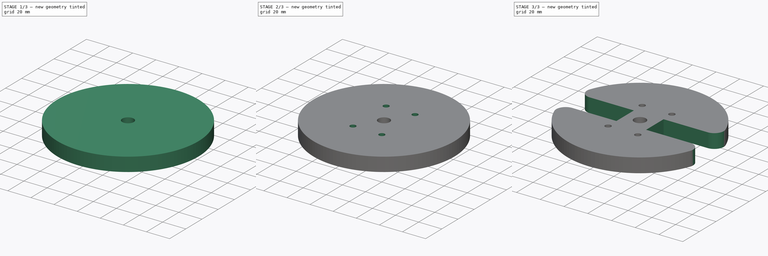
[diagram: build sequence overview — one tinted view per stage of 3, left to right]
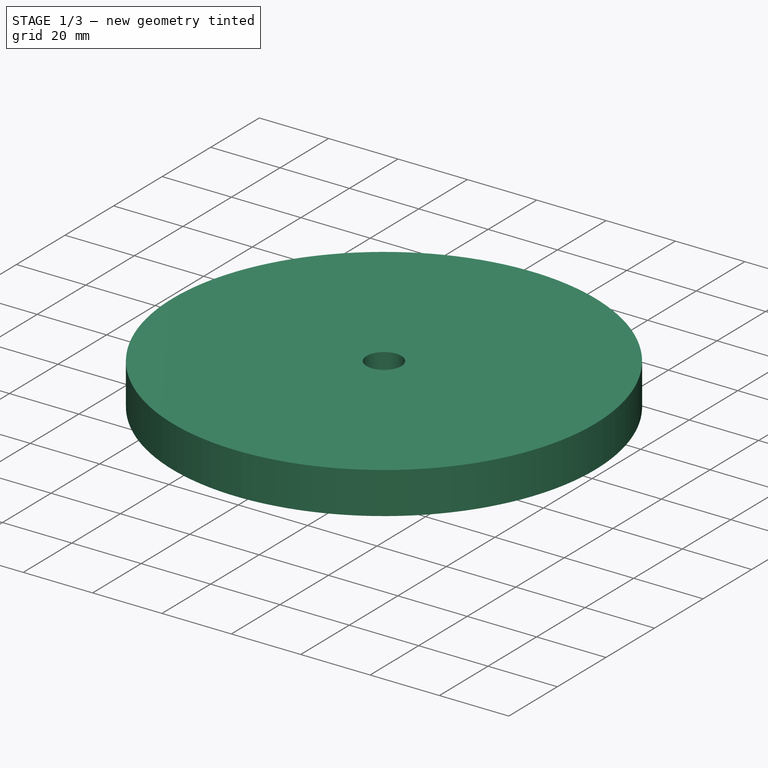
[diagram: stage 1 of 3 — iso view after this stage's code; geometry added in this stage tinted green]
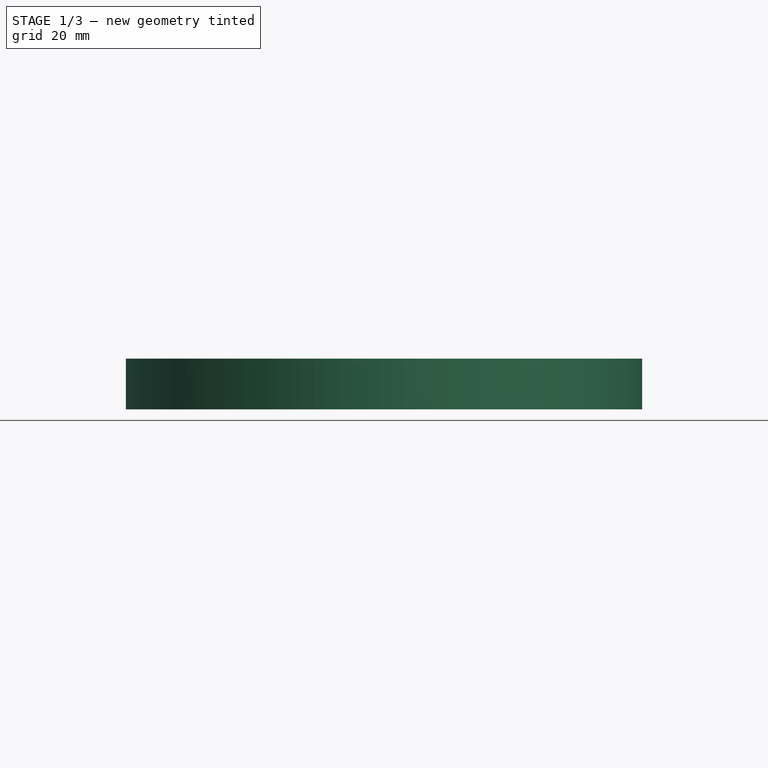
[diagram: stage 1 of 3 — front view after this stage's code; geometry added in this stage tinted green]
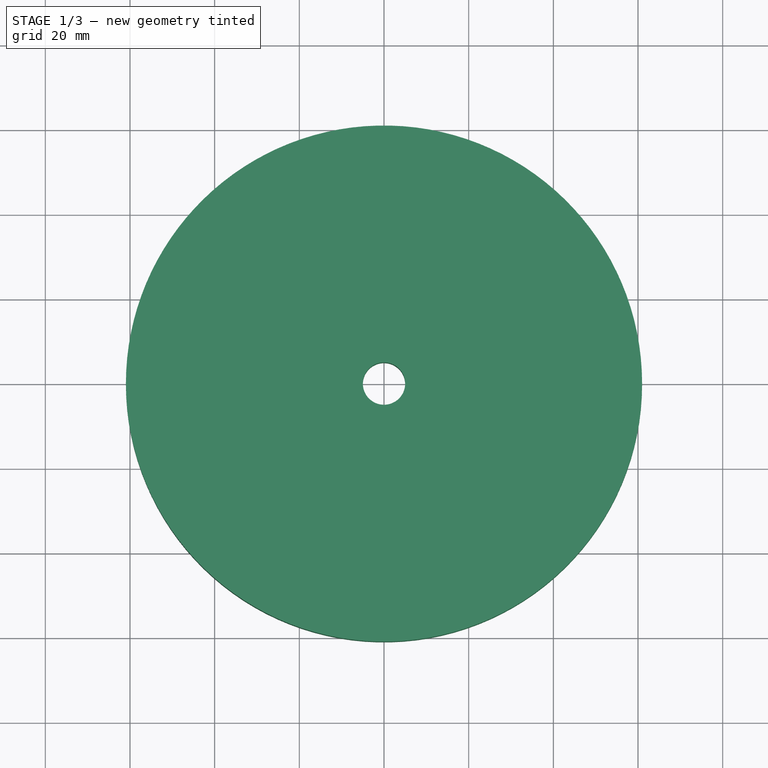
[diagram: stage 1 of 3 — top view after this stage's code; geometry added in this stage tinted green]
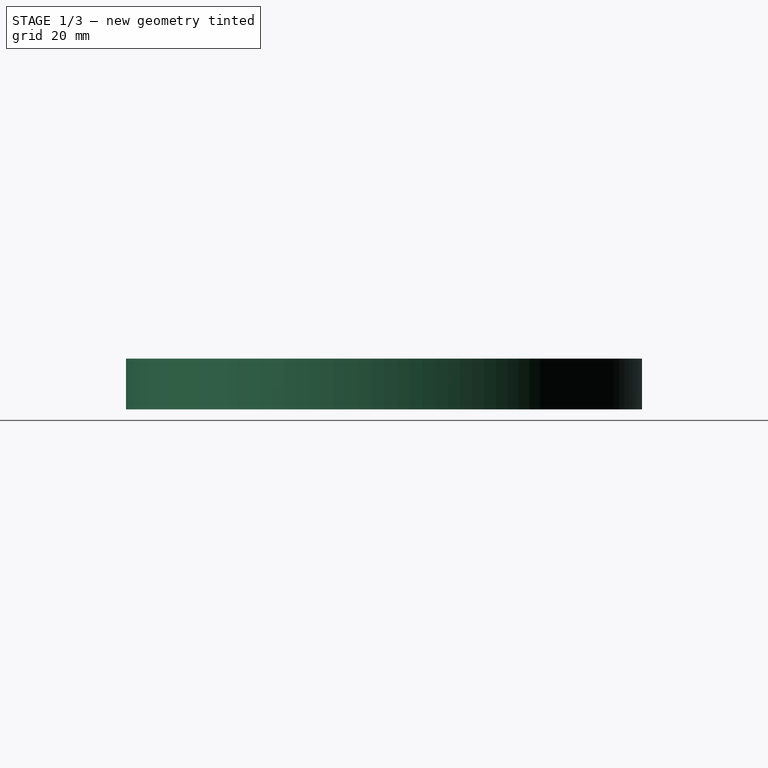
[diagram: stage 1 of 3 — right view after this stage's code; geometry added in this stage tinted green]
FCSTD DOCUMENT  (FreeCAD 1.0R39109 (Git))
Label: Stator_CoilWinder_Cheek
Comment: Back Cheek
License: All rights reserved
LicenseURL: http://en.wikipedia.org/wiki/All_rights_reserved
objects: Sketcher::SketchObject×4, PartDesign::Pocket×3, TechDraw::DrawViewDimension×3, PartDesign::Mirrored×2, PartDesign::Pad×1, Spreadsheet::Sheet×1, PartDesign::Body×1, TechDraw::DrawSVGTemplate×1, TechDraw::DrawProjGroupItem×1, TechDraw::DrawPage×1
note: 31 computed .brp shape members not serialized (recipe doc carries the construction recipe); baked Part::Feature solids carry a one-line shape summary decoded from their .brp
EXTERNAL_REF file=../../../Master_of_Puppets.FCStd obj=Alternator
EXTERNAL_REF file=../../../Master_of_Puppets.FCStd obj=Spreadsheet

FEATURE [Sketcher::SketchObject] Sketch
  ArcFitTolerance = 0
  AttachmentSupport = -> [XY_Plane001]
  FullyConstrained = true
  MakeInternals = false
  MapMode = 5
  expr: Constraints[1] = Spreadsheet.CoilWinderDiskRadius
  sketch-geometry (1):
    g0: Circle CenterX=0 CenterY=0 CenterZ=0 NormalX=0 NormalY=0 NormalZ=1 AngleXU=0 Radius=60.9591
  constraints (2):
    c: Coincident(g0,g-1)
    c: Radius(g0) = 60.9591
FEATURE [PartDesign::Pad] Pad
  AllowMultiFace = false
  Direction = (0,0,1)
  Length = 12
  Length2 = 100
  Profile = -> Sketch
  Suppressed = false
  Type = 0
  expr: Length = Spreadsheet.CoilWinderCheekThickness
FEATURE [Sketcher::SketchObject] Sketch001  label="CenterHoleSketch"
  ArcFitTolerance = 0
  AttachmentSupport = -> [XY_Plane001]
  FullyConstrained = true
  MakeInternals = false
  MapMode = 5
  Placement = pos=(0,0,0) rot=(0,1,0;3.14159rad)
  expr: Constraints[1] = Spreadsheet.CoilWinderCenterRodRadius
  sketch-geometry (1):
    g0: Circle CenterX=0 CenterY=0 CenterZ=0 NormalX=0 NormalY=0 NormalZ=1 AngleXU=0 Radius=5
  constraints (2):
    c: Coincident(g0,g-1)
    c: Radius(g0) = 5
FEATURE [PartDesign::Pocket] Pocket  label="CenterHolePocket"
  AllowMultiFace = false
  BaseFeature = -> Pad
  Direction = (0,0,1)
  Length = 5
  Length2 = 100
  Profile = -> Sketch001
  Suppressed = false
  Type = 1
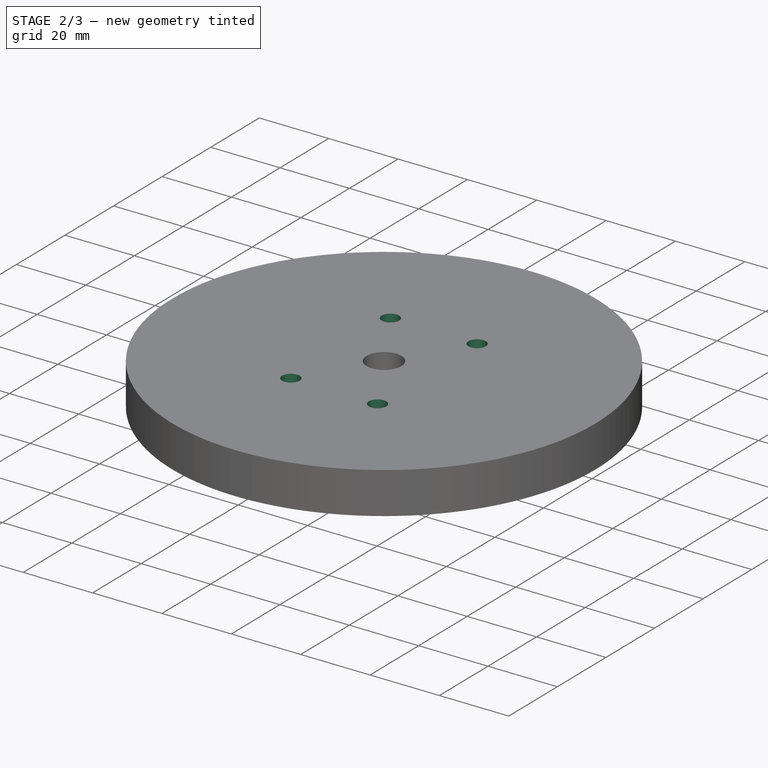
[diagram: stage 2 of 3 — iso view after this stage's code; geometry added in this stage tinted green]
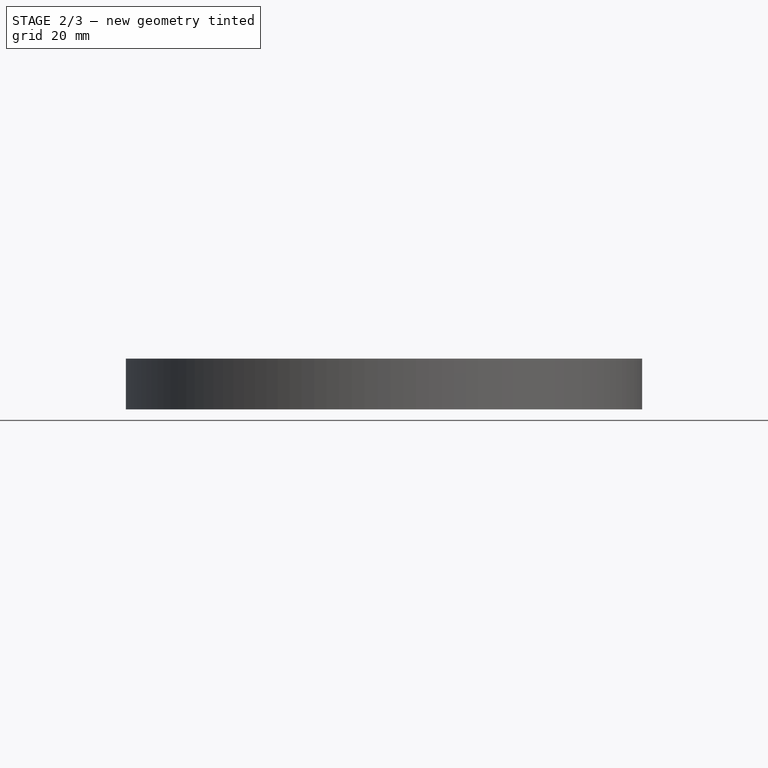
[diagram: stage 2 of 3 — front view after this stage's code; geometry added in this stage tinted green]
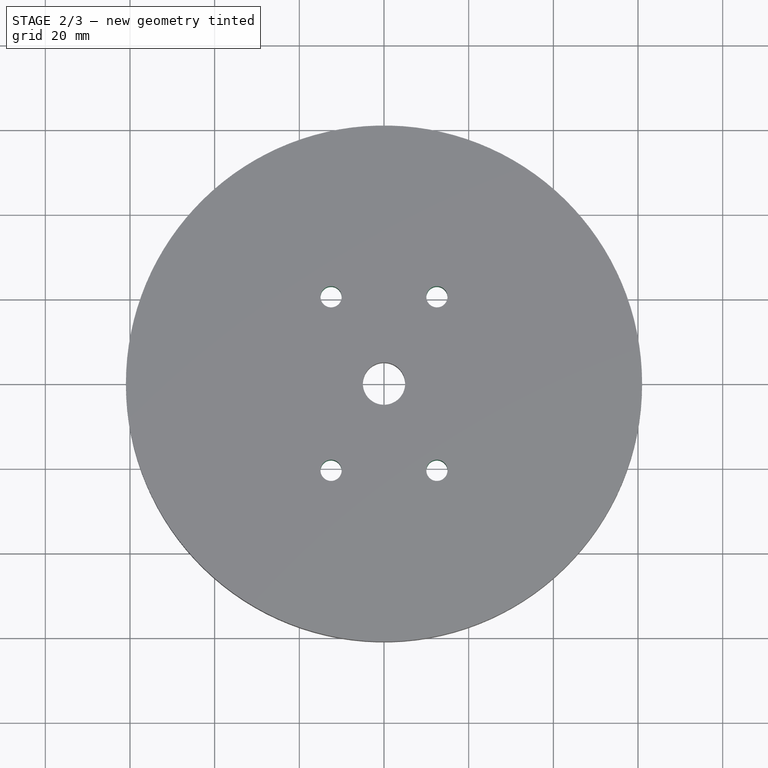
[diagram: stage 2 of 3 — top view after this stage's code; geometry added in this stage tinted green]
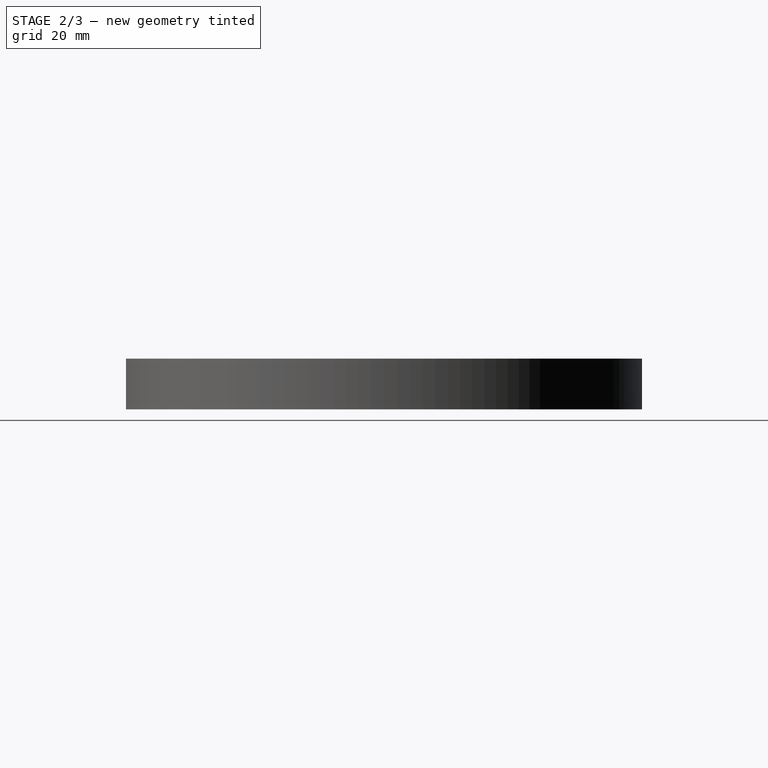
[diagram: stage 2 of 3 — right view after this stage's code; geometry added in this stage tinted green]
FEATURE [Sketcher::SketchObject] Sketch002  label="PinHolesSketch"
  ArcFitTolerance = 0
  AttachmentSupport = -> [XY_Plane001]
  FullyConstrained = true
  MakeInternals = false
  MapMode = 5
  Placement = pos=(0,0,0) rot=(0,1,0;3.14159rad)
  expr: Constraints[0] = Spreadsheet.CoilWinderPinRadius
  expr: Constraints[1] = Spreadsheet.RectangularVerticalDistanceOfHolesFromCenter
  expr: Constraints[2] = Spreadsheet.OuterHorizontalDistanceFromCenter
  expr: Constraints[4] = Spreadsheet.RectangularVerticalDistanceOfHolesFromCenter
  expr: Constraints[5] = Spreadsheet.InnerHorizontalDistanceFromCenter
  sketch-geometry (2):
    g0: Circle CenterX=12.5 CenterY=20.5 CenterZ=0 NormalX=0 NormalY=0 NormalZ=1 AngleXU=0 Radius=2.5
    g1: Circle CenterX=12.5 CenterY=-20.5 CenterZ=0 NormalX=0 NormalY=0 NormalZ=1 AngleXU=0 Radius=2.5
  constraints (6):
    c: Radius(g0) = 2.5
    c: DistanceY(g-1,g0) = 20.5
    c: DistanceX(g-1,g0) = 12.5
    c: Equal(g0,g1)
    c: DistanceY(g1,g-1) = 20.5
    c: DistanceX(g-1,g1) = 12.5
FEATURE [Spreadsheet::Sheet] Spreadsheet
  cells = A1='Inputs; A2='Spreadsheet; A3='MagnetWidth; B3(MagnetWidth)==Master_of_Puppets#Spreadsheet.MagnetWidth; A4='MagnetLength; B4(MagnetLength)==Master_of_Puppets#Spreadsheet.MagnetLength; A5='CoilHoleWidthAtOuterRadius; B5(CoilHoleWidthAtOuterRadius)==Master_of_Puppets#Spreadsheet.CoilHoleWidthAtOuterRadius; A6='CoilHoleWidthAtInnerRadius; B6(CoilHoleWidthAtInnerRadius)==Master_of_Puppets#Spreadsheet.CoilHoleWidthAtInnerRadius; A7='CoilType; B7(CoilType)==Master_of_Puppets#Spreadsheet.CoilType; A8='Alternator; A9='CoilWinderDiskRadius; B9(CoilWinderDiskRadius)==Master_of_Puppets#Alternator.CoilWinderDiskRadius; A10='CoilWinderCenterRodRadius; B10(CoilWinderCenterRodRadius)==Master_of_Puppets#Alternator.CoilWinderCenterRodRadius; A11='CoilWinderPinRadius; B11(CoilWinderPinRadius)==Master_of_Puppets#Alternator.CoilWinderPinRadius; A12='CoilWinderDiskTapeNotchWidth; B12(CoilWinderDiskTapeNotchWidth)==Master_of_Puppets#Alternator.CoilWinderDiskTapeNotchWidth; A13='CoilWinderDiskFillet; B13(CoilWinderDiskFillet)==Master_of_Puppets#Alternator.CoilWinderDiskFillet; A14='RectangularVerticalDistanceOfHolesFromCenter; B14(RectangularVerticalDistanceOfHolesFromCenter)==Master_of_Puppets#Alternator.RectangularVerticalDistanceOfHolesFromCenter; A15='CoilWinderCheekThickness; B15(CoilWinderCheekThickness)==Master_of_Puppets#Alternator.CoilWinderCheekThickness; A16='OuterHorizontalDistanceBetweenCenterOfSmallHoles; B16(OuterHorizontalDistanceBetweenCenterOfSmallHoles)==Master_of_Puppets#Alternator.OuterHorizontalDistanceBetweenCenterOfSmallHoles; A17='InnerHorizontalDistanceBetweenCenterOfSmallHoles; B17(InnerHorizontalDistanceBetweenCenterOfSmallHoles)==Master_of_Puppets#Alternator.InnerHorizontalDistanceBetweenCenterOfSmallHoles; A18='Calculated; A19='CoilWinderDiskSmallHoleDiameter; B19(CoilWinderDiskSmallHoleDiameter)==CoilWinderPinRadius * 2; A20='OuterHorizontalDistanceFromCenter; B20(OuterHorizontalDistanceFromCenter)==OuterHorizontalDistanceBetweenCenterOfSmallHoles / 2; A21='InnerHorizontalDistanceFromCenter; B21(InnerHorizontalDistanceFromCenter)==InnerHorizontalDistanceBetweenCenterOfSmallHoles / 2; A22='SmallestOuterDimension; B22(SmallestOuterDimension)==min(CoilHoleWidthAtOuterRadius; MagnetLength); A23='TapeNotchOuterDistanceFromCenter; B23(TapeNotchOuterDistanceFromCenter)==(SmallestOuterDimension - CoilWinderDiskSmallHoleDiameter) / 2; A24='SmallestInnerDimension; B24(SmallestInnerDimension)==min(CoilHoleWidthAtInnerRadius; MagnetLength); A25='TapeNotchInnerDistanceFromCenter; B25(TapeNotchInnerDistanceFromCenter)==CoilType != 3 ? (SmallestInnerDimension - CoilWinderDiskSmallHoleDiameter) / 2 : TapeNotchOuterDistanceFromCenter
FEATURE [Sketcher::SketchObject] Sketch005  label="TapeNotchSketch"
  ArcFitTolerance = 0
  AttachmentSupport = -> [XY_Plane001]
  FullyConstrained = true
  MakeInternals = false
  MapMode = 5
  Placement = pos=(0,0,0) rot=(0,1,0;3.14159rad)
  expr: Constraints[13] = Spreadsheet.CoilWinderDiskFillet
  expr: Constraints[17] = Spreadsheet.CoilWinderDiskFillet
  expr: Constraints[23] = Spreadsheet.OuterHorizontalDistanceFromCenter
  expr: Constraints[24] = Spreadsheet.InnerHorizontalDistanceFromCenter
  expr: Constraints[25] = Spreadsheet.RectangularVerticalDistanceOfHolesFromCenter * 2
  expr: Constraints[26] = Spreadsheet.RectangularVerticalDistanceOfHolesFromCenter
  expr: Constraints[7] = Spreadsheet.CoilWinderDiskTapeNotchWidth
  expr: Constraints[9] = Spreadsheet.CoilWinderDiskRadius
  sketch-geometry (10):
    g0: LineSegment StartX=12.5 StartY=10.5 StartZ=0 EndX=49.6227 EndY=10.5 EndZ=0
    g1: LineSegment StartX=12.5 StartY=-10.5 StartZ=0 EndX=49.6227 EndY=-10.5 EndZ=0
    g2: GeomPoint [constr] X=12.5 Y=0 Z=0
    g3: LineSegment StartX=12.5 StartY=10.5 StartZ=0 EndX=12.5 EndY=0 EndZ=0
    g4: LineSegment StartX=12.5 StartY=0 StartZ=0 EndX=12.5 EndY=-10.5 EndZ=0
    g5: Circle [constr] CenterX=0 CenterY=0 CenterZ=0 NormalX=0 NormalY=0 NormalZ=1 AngleXU=0 Radius=60.9591
    g6: ArcOfCircle CenterX=0 CenterY=0 CenterZ=0 NormalX=0 NormalY=0 NormalZ=1 AngleXU=0 Radius=60.9591 StartAngle=5.92633 EndAngle=6.64004
    g7: ArcOfCircle CenterX=49.6227 CenterY=18.5 CenterZ=0 NormalX=0 NormalY=0 NormalZ=1 AngleXU=0 Radius=8 StartAngle=4.71239 EndAngle=6.64003
    g8: ArcOfCircle CenterX=49.6227 CenterY=-18.5 CenterZ=0 NormalX=0 NormalY=0 NormalZ=1 AngleXU=0 Radius=8 StartAngle=5.92633 EndAngle=7.85398
    g9: LineSegment [constr] StartX=12.5 StartY=-20.5 StartZ=0 EndX=12.5 EndY=20.5 EndZ=0
  constraints (27):
    c: Parallel(g1,g0)
    c: Coincident(g3,g0)
    c: Coincident(g3,g2)
    c: Coincident(g4,g3)
    c: Coincident(g4,g1)
    c: Equal(g3,g4)
    c: Perpendicular(g3,g0)
    c: Distance(g1,g0) = 21
    c: Coincident(g5,g-1)
    c: Radius(g5) = 60.9591
    c: PointOnObject(g6,g5)
    c: Coincident(g6,g5)
    c: Tangent(g0,g7) = -1.5708
    c: Radius(g7) = 8
    c: Coincident(g6,g7)
    c: Tangent(g7,g5)
    c: Tangent(g1,g8) = 1.5708
    c: Radius(g8) = 8
    c: Tangent(g6,g8) = -1.5708
    c: PointOnObject(g1,g9)
    c: PointOnObject(g0,g9)
    c: PointOnObject(g2,g9)
    c: PointOnObject(g2,g-1)
    c: DistanceX(g9) = 12.5
    c: DistanceX(g-1,g9) = 12.5
    c: DistanceY(g9,g9) = 41
    c: DistanceY(g-1,g9) = 20.5
FEATURE [PartDesign::Pocket] Pocket005  label="PinHolesPocket"
  BaseFeature = -> Pocket
  Direction = (0,0,1)
  Length = 5
  Length2 = 5
  Profile = -> Sketch002
  ReferenceAxis = -> Sketch002 [N_Axis]
  Suppressed = false
  Type = 1
FEATURE [PartDesign::Mirrored] Mirrored001  label="PinHolesPocketMirrorred"
  BaseFeature = -> Pocket005
  MirrorPlane = -> Sketch002 [V_Axis]
  Originals = -> [Pocket005]
  Suppressed = false
  TransformMode = 0
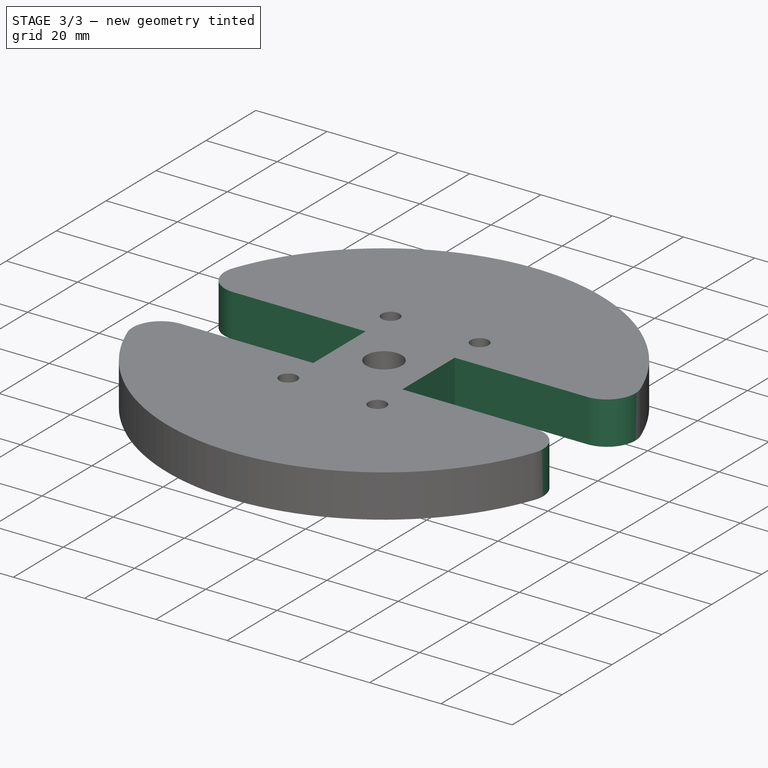
[diagram: stage 3 of 3 — iso view after this stage's code; geometry added in this stage tinted green]
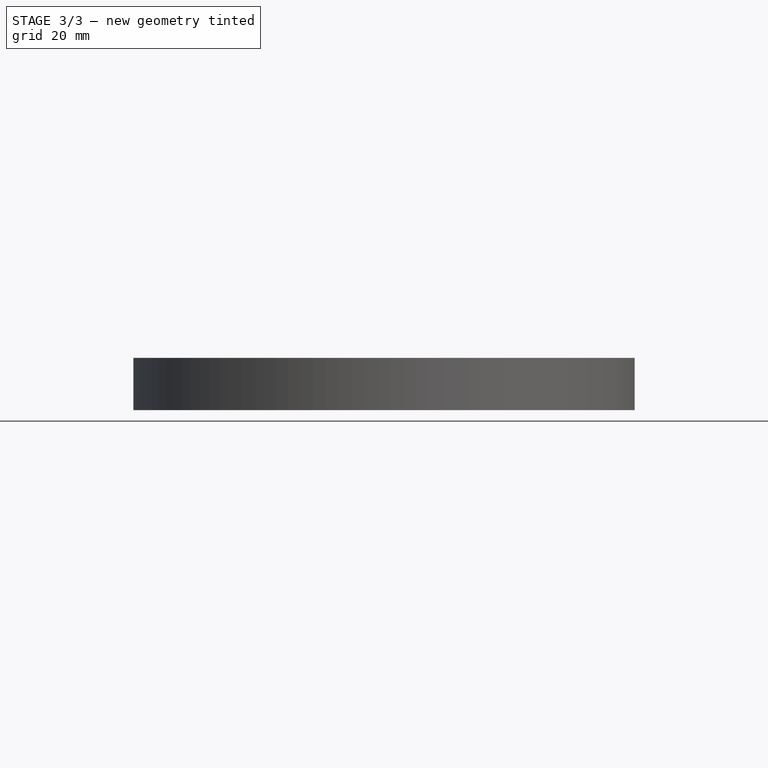
[diagram: stage 3 of 3 — front view after this stage's code; geometry added in this stage tinted green]
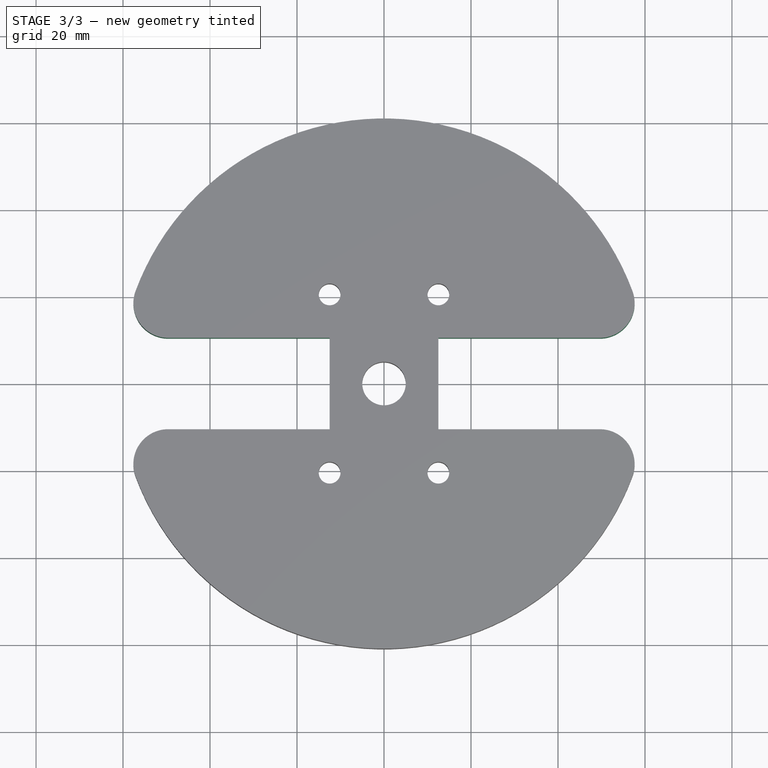
[diagram: stage 3 of 3 — top view after this stage's code; geometry added in this stage tinted green]
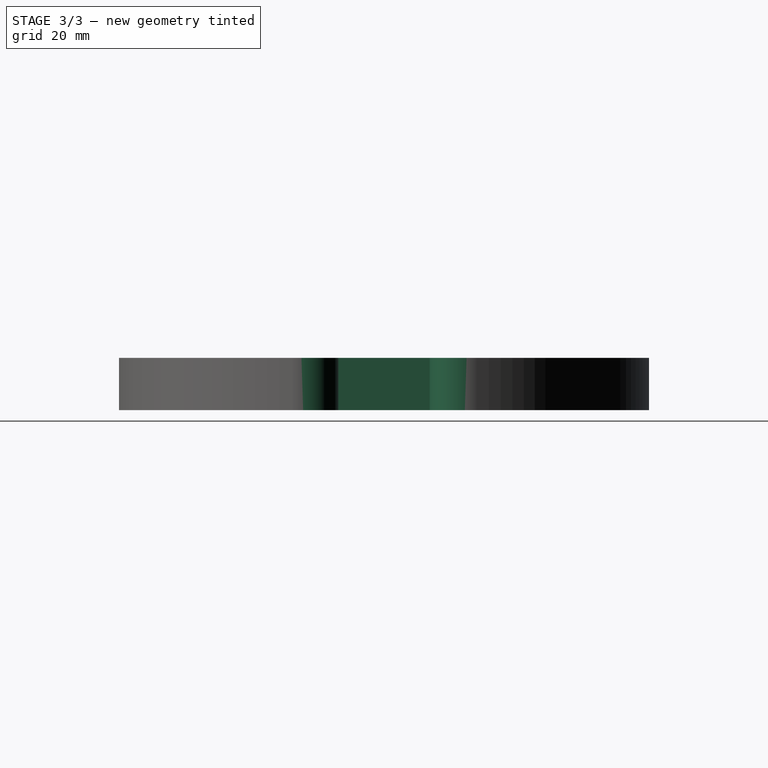
[diagram: stage 3 of 3 — right view after this stage's code; geometry added in this stage tinted green]
FEATURE [PartDesign::Pocket] Pocket004  label="TapeNotchPocket"
  AllowMultiFace = false
  BaseFeature = -> Mirrored001
  Direction = (0,0,1)
  Length = 5
  Length2 = 100
  Profile = -> Sketch005
  Suppressed = false
  Type = 1
FEATURE [PartDesign::Mirrored] Mirrored  label="TapeNotchPocketMirrored"
  BaseFeature = -> Pocket004
  MirrorPlane = -> Sketch005 [V_Axis]
  Originals = -> [Pocket004]
  Suppressed = false
  TransformMode = 0
FEATURE [PartDesign::Body] PolarPattern001Body  label="Stator_CoilWinder_Cheek"
  AllowCompound = false
  Group = -> [Sketch,Pad,Sketch001,Pocket,Pocket005,Mirrored001,Sketch002,Sketch005,Pocket004,Mirrored]
  Openafpm_Flat = true
  Origin = -> Origin001
  Tip = -> Mirrored
FEATURE [TechDraw::DrawSVGTemplate] Template
  Height = 210
  Orientation = 1
  Template = <userpath>/micromamba/envs/openafpm-cad-core/share/Mod/TechDraw/Templates/Default_Template_A4_Landscape.svg
  Width = 297
FEATURE [TechDraw::DrawProjGroupItem] View
  CoarseView = false
  Direction = (0,0,1)
  Focus = 100
  HardHidden = false
  IsoCount = 0
  IsoHidden = false
  IsoVisible = false
  LockPosition = false
  Perspective = false
  Rotation = 0
  RotationVector = (1,0,0)
  ScaleType = 0
  ScrubCount = 1
  SeamHidden = false
  SeamVisible = false
  SmoothHidden = false
  SmoothVisible = true
  Source = -> [PolarPattern001Body]
  Type = 0
  X = 132.704
  XDirection = (1,0,0)
  Y = 103.638
FEATURE [TechDraw::DrawViewDimension] Dimension  label="A"
  AngleOverride = false
  Arbitrary = true
  ArbitraryTolerances = false
  BoxCorners = (2) [(-57.6227,-60.9591,0),(57.6227,60.9591,0)]
  EqualTolerance = true
  ExtensionAngle = 0
  FormatSpec = A
  FormatSpecOverTolerance = %+.2w
  FormatSpecUnderTolerance = %+.2w
  Inverted = false
  LineAngle = 0
  LockPosition = false
  MeasureType = 1
  OverTolerance = 0
  References2D = -> [View]
  Rotation = 0
  ScaleType = 0
  TheoreticalExact = false
  Type = 2
  UnderTolerance = 0
  X = -75.1271
  Y = 0
FEATURE [TechDraw::DrawViewDimension] Dimension001  label="B"
  AngleOverride = false
  Arbitrary = true
  ArbitraryTolerances = false
  BoxCorners = (2) [(-57.6227,-60.9591,0),(57.6227,60.9591,0)]
  EqualTolerance = true
  ExtensionAngle = 0
  FormatSpec = B
  FormatSpecOverTolerance = %+.2w
  FormatSpecUnderTolerance = %+.2w
  Inverted = false
  LineAngle = 0
  LockPosition = false
  MeasureType = 1
  OverTolerance = 0
  References2D = -> [View]
  Rotation = 0
  ScaleType = 0
  TheoreticalExact = false
  Type = 1
  UnderTolerance = 0
  X = 0
  Y = 73.3273
FEATURE [TechDraw::DrawViewDimension] Dimension002  label="C"
  AngleOverride = false
  Arbitrary = true
  ArbitraryTolerances = false
  BoxCorners = (2) [(-57.6227,-60.9591,0),(57.6227,60.9591,0)]
  EqualTolerance = true
  ExtensionAngle = 0
  FormatSpec = C
  FormatSpecOverTolerance = %+.2w
  FormatSpecUnderTolerance = %+.2w
  Inverted = false
  LineAngle = 0
  LockPosition = false
  MeasureType = 1
  OverTolerance = 0
  References2D = -> [View]
  Rotation = 0
  ScaleType = 0
  TheoreticalExact = false
  Type = 1
  UnderTolerance = 0
  X = 0
  Y = -67.5663
FEATURE [TechDraw::DrawPage] Page
  KeepUpdated = true
  NextBalloonIndex = 1
  ProjectionType = 0
  Template = -> Template
  Views = -> [View,Dimension,Dimension001,Dimension002]
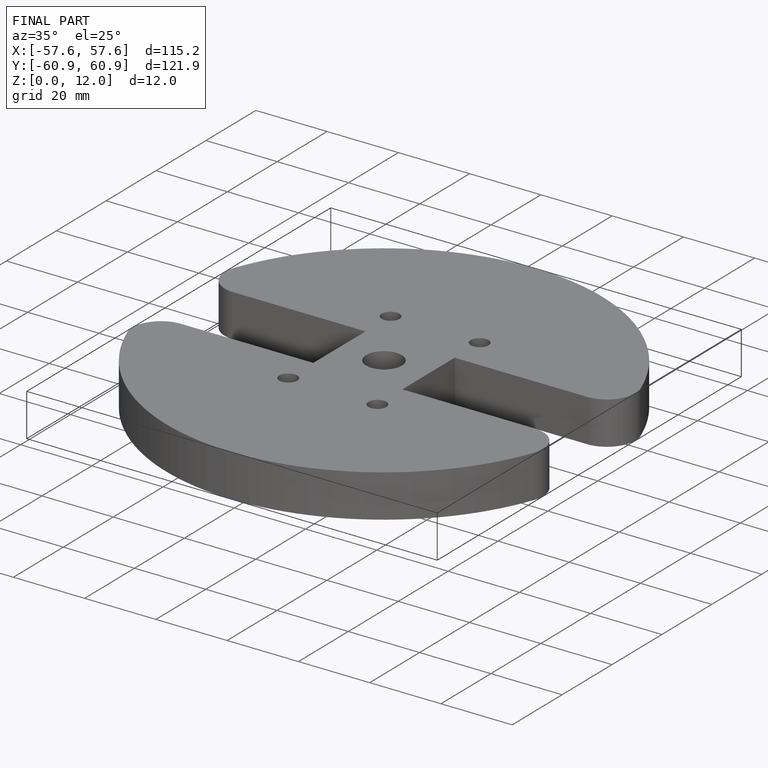
[diagram: finished part — iso view with bounding-box wireframe]
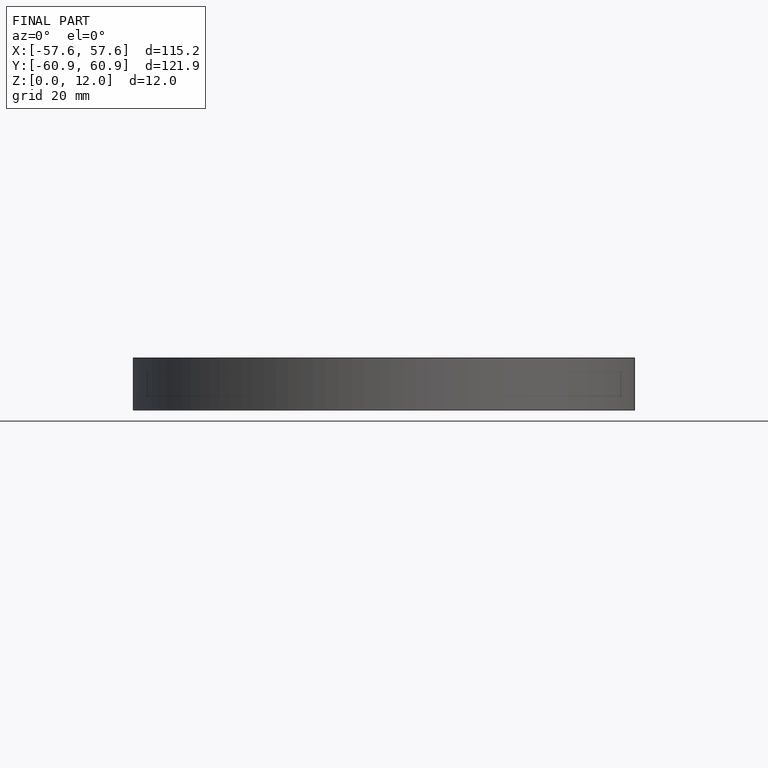
[diagram: finished part — front view with bounding-box wireframe]
